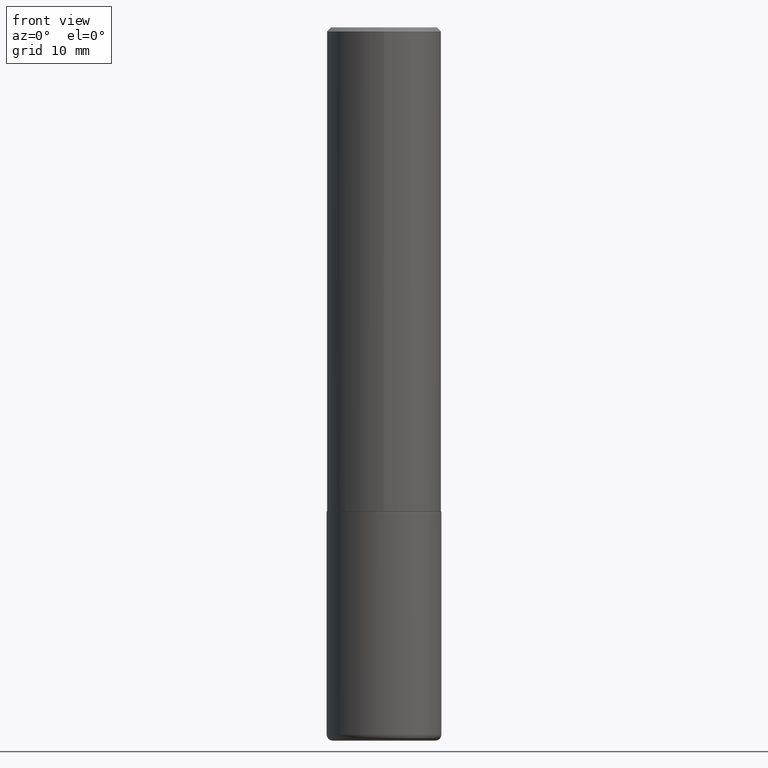
[diagram: clean part render]
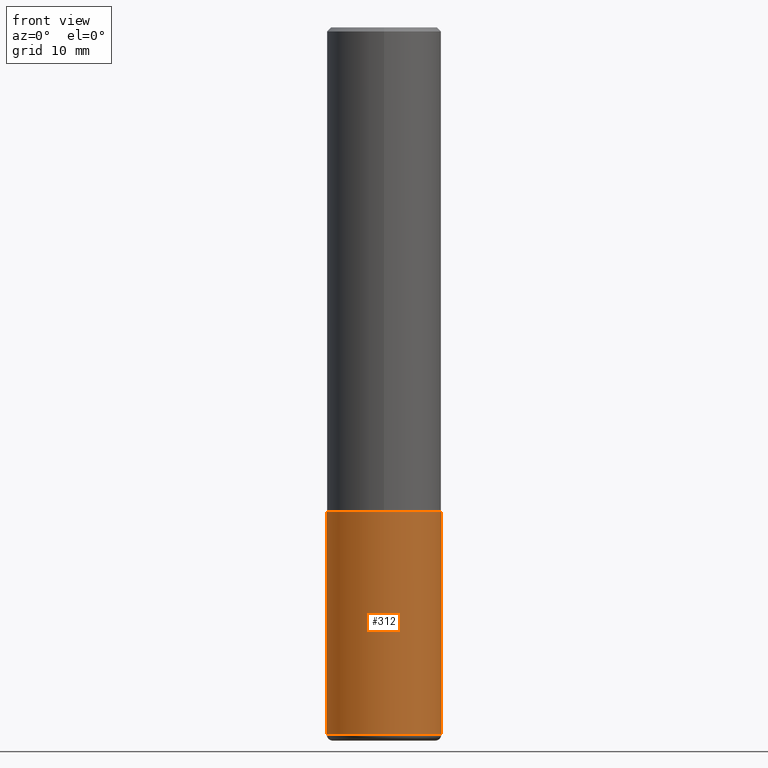
[diagram: same view with one face highlighted and labeled with its STEP entity id]
A machine part, front view. The second image highlights one B-rep face of the part: STEP entity #312.
In plain terms, the highlighted cylindrical surface (partial cylindrical patch) has radius 7.1437 mm, axis along (-0, 0, 1).
Its self-contained STEP definition (entity closure, byte-faithful):
#2 = EDGE_CURVE ( 'NONE', #405, #361, #144, .T. ) ;
#20 = DIRECTION ( 'NONE',  ( -2.445468806185136877E-29, 3.491481338843145188E-15, 1.000000000000000000 ) ) ;
#44 = EDGE_CURVE ( 'NONE', #361, #67, #285, .T. ) ;
#45 = AXIS2_PLACEMENT_3D ( 'NONE', #294, #99, #243 ) ;
#52 = CARTESIAN_POINT ( 'NONE',  ( 0.2812500000000000000, -1.025622643285173184E-14, -2.374999999999999556 ) ) ;
#65 = DIRECTION ( 'NONE',  ( 1.000000000000000000, -6.982962677686266711E-15, 4.876176775795935793E-29 ) ) ;
#67 = VERTEX_POINT ( 'NONE', #52 ) ;
#81 = FACE_OUTER_BOUND ( 'NONE', #165, .T. ) ;
#99 = DIRECTION ( 'NONE',  ( -2.445468806185136597E-29, 3.491481338843145583E-15, 1.000000000000000000 ) ) ;
#102 = AXIS2_PLACEMENT_3D ( 'NONE', #359, #400, #65 ) ;
#121 = CARTESIAN_POINT ( 'NONE',  ( -0.2812499999999998335, -1.011703880146043420E-14, -3.469999999999999751 ) ) ;
#144 = LINE ( 'NONE', #176, #290 ) ;
#145 = CIRCLE ( 'NONE', #45, 0.2812500000000000000 ) ;
#165 = EDGE_LOOP ( 'NONE', ( #264, #417, #398, #418 ) ) ;
#176 = CARTESIAN_POINT ( 'NONE',  ( -0.2812500000000000000, 1.998401444325281773E-15, -1.383450494134192269E-29 ) ) ;
#209 = DIRECTION ( 'NONE',  ( -2.445468806185136877E-29, 3.491481338843145188E-15, 1.000000000000000000 ) ) ;
#239 = VECTOR ( 'NONE', #209, 39.37007874015748143 ) ;
#241 = DIRECTION ( 'NONE',  ( -2.445468806185136597E-29, 3.491481338843145583E-15, 1.000000000000000000 ) ) ;
#243 = DIRECTION ( 'NONE',  ( 1.000000000000000000, -6.982962677686269866E-15, 0.000000000000000000 ) ) ;
#251 = CARTESIAN_POINT ( 'NONE',  ( 5.807988414689698296E-29, -8.292268179752468540E-15, -2.374999999999999556 ) ) ;
#254 = CARTESIAN_POINT ( 'NONE',  ( 0.2812499999999998335, -1.407939849888497612E-14, -3.469999999999999751 ) ) ;
#257 = EDGE_CURVE ( 'NONE', #405, #402, #145, .T. ) ;
#262 = CARTESIAN_POINT ( 'NONE',  ( -0.2812500000000000000, -8.205452768443809695E-15, -2.374999999999999556 ) ) ;
#264 = ORIENTED_EDGE ( 'NONE', *, *, #2, .F. ) ;
#281 = CARTESIAN_POINT ( 'NONE',  ( 0.2812500000000000000, -1.963958253099262512E-15, 1.371424718192607012E-29 ) ) ;
#285 = CIRCLE ( 'NONE', #323, 0.2812500000000000000 ) ;
#290 = VECTOR ( 'NONE', #20, 39.37007874015748143 ) ;
#294 = CARTESIAN_POINT ( 'NONE',  ( 8.485776757462424574E-29, -1.211544024578571439E-14, -3.469999999999999751 ) ) ;
#300 = EDGE_CURVE ( 'NONE', #402, #67, #311, .T. ) ;
#311 = LINE ( 'NONE', #281, #239 ) ;
#312 = ADVANCED_FACE ( 'NONE', ( #81 ), #328, .T. ) ;
#323 = AXIS2_PLACEMENT_3D ( 'NONE', #251, #241, #344 ) ;
#328 = CYLINDRICAL_SURFACE ( 'NONE', #102, 0.2812500000000000000 ) ;
#344 = DIRECTION ( 'NONE',  ( 1.000000000000000000, -6.982962677686266711E-15, 0.000000000000000000 ) ) ;
#359 = CARTESIAN_POINT ( 'NONE',  ( 0.000000000000000000, 0.000000000000000000, 0.000000000000000000 ) ) ;
#361 = VERTEX_POINT ( 'NONE', #262 ) ;
#398 = ORIENTED_EDGE ( 'NONE', *, *, #300, .T. ) ;
#400 = DIRECTION ( 'NONE',  ( -2.445468806185136597E-29, 3.491481338843145583E-15, 1.000000000000000000 ) ) ;
#402 = VERTEX_POINT ( 'NONE', #254 ) ;
#405 = VERTEX_POINT ( 'NONE', #121 ) ;
#417 = ORIENTED_EDGE ( 'NONE', *, *, #257, .T. ) ;
#418 = ORIENTED_EDGE ( 'NONE', *, *, #44, .F. ) ;